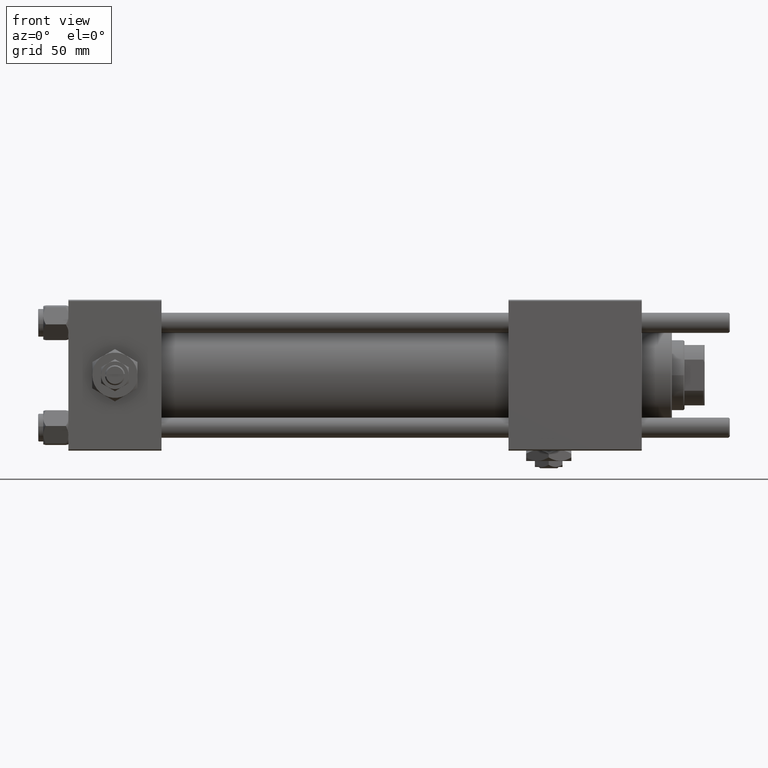
[diagram: clean part render]
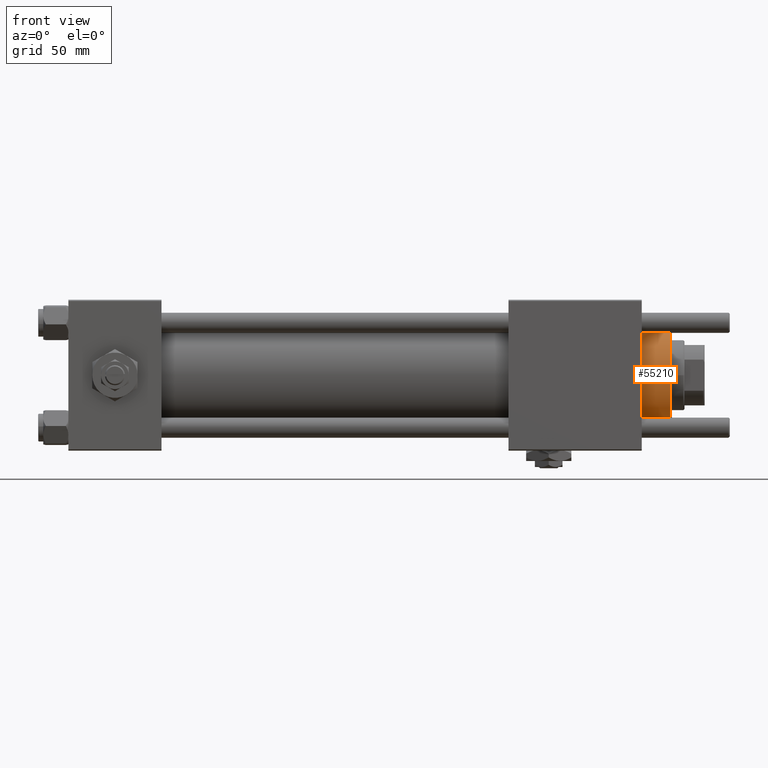
[diagram: same view with one face highlighted and labeled with its STEP entity id]
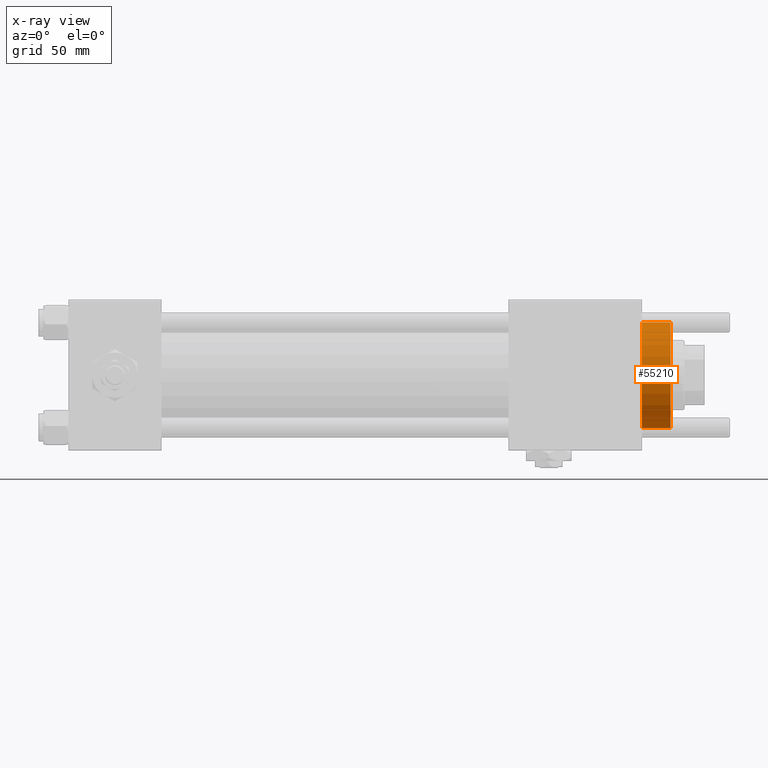
[diagram: x-ray of the same camera — body ghosted, the highlighted face saturated]
A machine part, front view. The second image highlights one B-rep face of the part: STEP entity #55210.
The next image is the same camera in x-ray: the body ghosted, the highlighted face saturated — about 0% of this face is hidden behind the body in this view.
In plain terms, the highlighted cylindrical surface (partial cylindrical patch) has radius 21 mm, axis along (-1, -0, 0).
Its self-contained STEP definition (entity closure, byte-faithful):
#1880 = VERTEX_POINT ( 'NONE', #50900 ) ;
#2786 = ORIENTED_EDGE ( 'NONE', *, *, #3885, .F. ) ;
#3885 = EDGE_CURVE ( 'NONE', #48262, #23127, #7510, .T. ) ;
#4573 = DIRECTION ( 'NONE',  ( 1.000000000000000000, 0.000000000000000000, 0.000000000000000000 ) ) ;
#7510 = LINE ( 'NONE', #21772, #38647 ) ;
#11523 = CIRCLE ( 'NONE', #40022, 21.00000000000000000 ) ;
#11905 = CARTESIAN_POINT ( 'NONE',  ( 21.00000000000000000, 2.571758278209441661E-15, 28.69999999999999929 ) ) ;
#12502 = CARTESIAN_POINT ( 'NONE',  ( -21.00000000000000000, 0.000000000000000000, 40.70000000000000284 ) ) ;
#13412 = ORIENTED_EDGE ( 'NONE', *, *, #40152, .T. ) ;
#17863 = DIRECTION ( 'NONE',  ( -0.000000000000000000, -0.000000000000000000, -1.000000000000000000 ) ) ;
#21448 = CARTESIAN_POINT ( 'NONE',  ( 0.000000000000000000, 0.000000000000000000, 40.70000000000000284 ) ) ;
#21772 = CARTESIAN_POINT ( 'NONE',  ( 21.00000000000000000, 2.571758278209441661E-15, 40.70000000000000284 ) ) ;
#22048 = CYLINDRICAL_SURFACE ( 'NONE', #49548, 21.00000000000000000 ) ;
#22317 = CARTESIAN_POINT ( 'NONE',  ( -21.00000000000000000, 0.000000000000000000, 28.69999999999999929 ) ) ;
#22695 = CIRCLE ( 'NONE', #24610, 21.00000000000000000 ) ;
#23127 = VERTEX_POINT ( 'NONE', #11905 ) ;
#24231 = VERTEX_POINT ( 'NONE', #22317 ) ;
#24610 = AXIS2_PLACEMENT_3D ( 'NONE', #35223, #45337, #4573 ) ;
#26729 = ORIENTED_EDGE ( 'NONE', *, *, #57381, .T. ) ;
#28105 = EDGE_CURVE ( 'NONE', #48262, #1880, #22695, .T. ) ;
#30453 = ORIENTED_EDGE ( 'NONE', *, *, #28105, .T. ) ;
#30661 = DIRECTION ( 'NONE',  ( -0.000000000000000000, -0.000000000000000000, -1.000000000000000000 ) ) ;
#30712 = DIRECTION ( 'NONE',  ( -0.000000000000000000, -0.000000000000000000, -1.000000000000000000 ) ) ;
#35223 = CARTESIAN_POINT ( 'NONE',  ( 0.000000000000000000, 0.000000000000000000, 40.19999999999998863 ) ) ;
#35439 = DIRECTION ( 'NONE',  ( -1.000000000000000000, 0.000000000000000000, 0.000000000000000000 ) ) ;
#38647 = VECTOR ( 'NONE', #30712, 1000.000000000000000 ) ;
#39019 = CARTESIAN_POINT ( 'NONE',  ( 0.000000000000000000, 0.000000000000000000, 28.69999999999999929 ) ) ;
#39895 = FACE_OUTER_BOUND ( 'NONE', #46089, .T. ) ;
#40022 = AXIS2_PLACEMENT_3D ( 'NONE', #39019, #43481, #52736 ) ;
#40152 = EDGE_CURVE ( 'NONE', #24231, #23127, #11523, .T. ) ;
#40176 = LINE ( 'NONE', #12502, #44861 ) ;
#43481 = DIRECTION ( 'NONE',  ( 0.000000000000000000, 0.000000000000000000, 1.000000000000000000 ) ) ;
#44861 = VECTOR ( 'NONE', #30661, 1000.000000000000000 ) ;
#45337 = DIRECTION ( 'NONE',  ( 0.000000000000000000, 0.000000000000000000, -1.000000000000000000 ) ) ;
#46089 = EDGE_LOOP ( 'NONE', ( #2786, #30453, #26729, #13412 ) ) ;
#47772 = CARTESIAN_POINT ( 'NONE',  ( 21.00000000000000000, 2.571758278209441661E-15, 40.19999999999998863 ) ) ;
#48262 = VERTEX_POINT ( 'NONE', #47772 ) ;
#49548 = AXIS2_PLACEMENT_3D ( 'NONE', #21448, #17863, #35439 ) ;
#50900 = CARTESIAN_POINT ( 'NONE',  ( -21.00000000000000000, 0.000000000000000000, 40.19999999999998863 ) ) ;
#52736 = DIRECTION ( 'NONE',  ( 1.000000000000000000, 0.000000000000000000, 0.000000000000000000 ) ) ;
#55210 = ADVANCED_FACE ( 'NONE', ( #39895 ), #22048, .T. ) ;
#57381 = EDGE_CURVE ( 'NONE', #1880, #24231, #40176, .T. ) ;